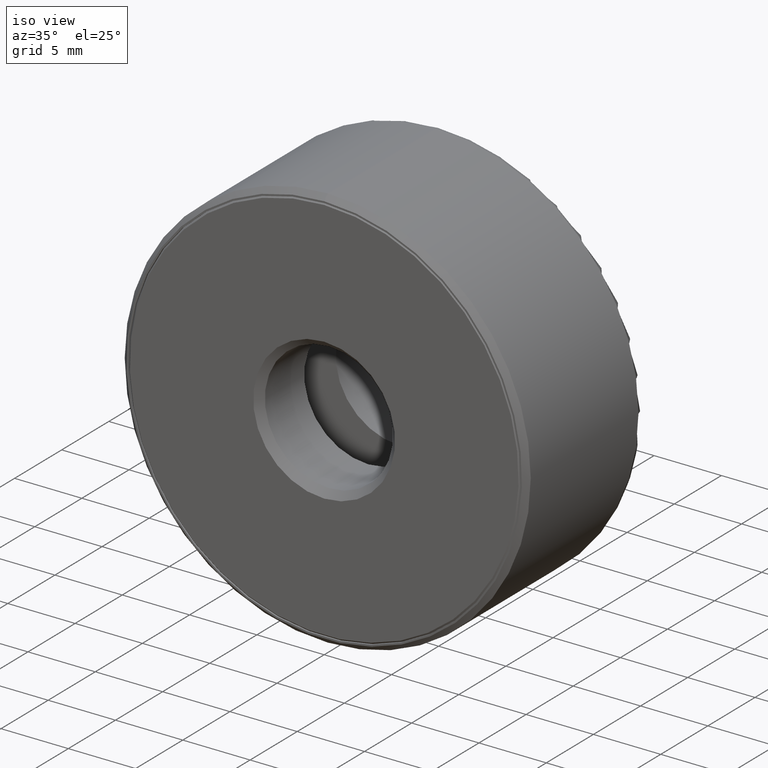
[diagram: clean part render]
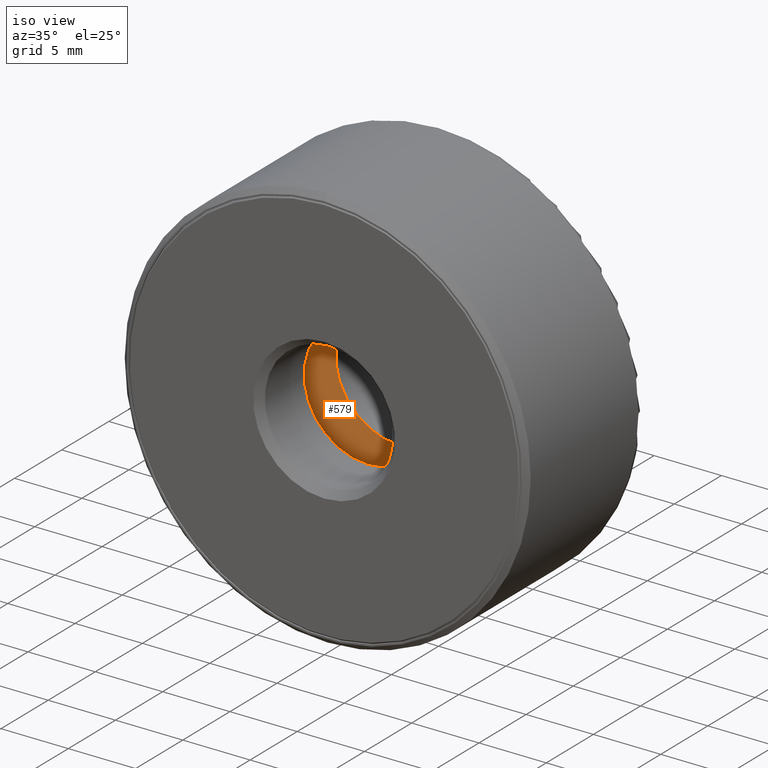
[diagram: same view with one face highlighted and labeled with its STEP entity id]
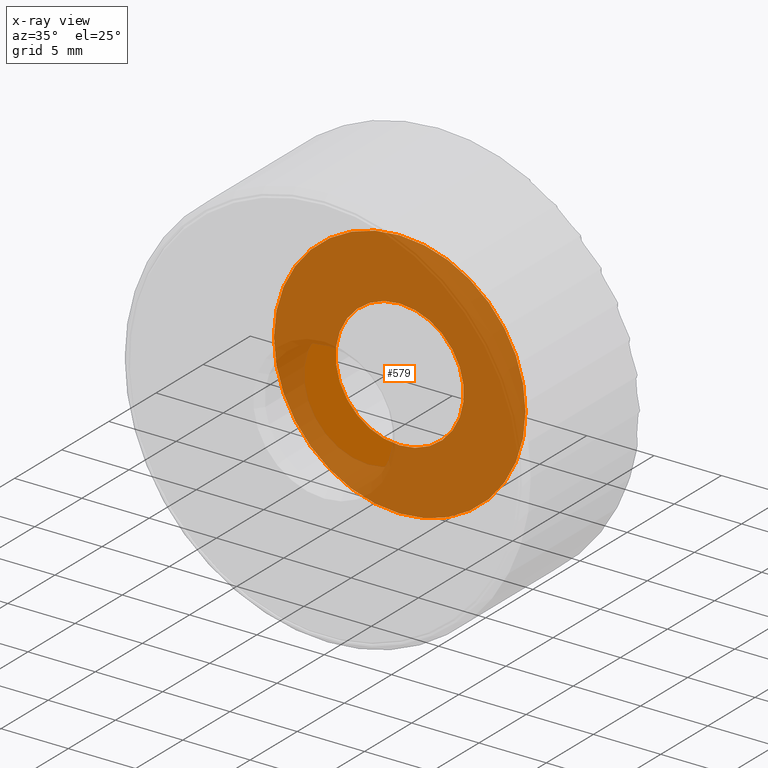
[diagram: x-ray of the same camera — body ghosted, the highlighted face saturated]
A machine part, iso view. The second image highlights one B-rep face of the part: STEP entity #579.
The next image is the same camera in x-ray: the body ghosted, the highlighted face saturated — about 88% of this face is hidden behind the body in this view.
In plain terms, the highlighted planar face has unit normal (0, -1, 0).
Its self-contained STEP definition (entity closure, byte-faithful):
#5 = DIRECTION ( 'NONE',  ( 0.0000000000000000000, -1.000000000000000000, 0.0000000000000000000 ) ) ;
#95 = EDGE_LOOP ( 'NONE', ( #593 ) ) ;
#127 = CARTESIAN_POINT ( 'NONE',  ( 0.0000000000000000000, 0.3156249999999998800, 0.0000000000000000000 ) ) ;
#159 = ORIENTED_EDGE ( 'NONE', *, *, #262, .F. ) ;
#183 = DIRECTION ( 'NONE',  ( -0.0000000000000000000, 1.000000000000000000, -0.0000000000000000000 ) ) ;
#197 = DIRECTION ( 'NONE',  ( 0.0000000000000000000, -0.0000000000000000000, -1.000000000000000000 ) ) ;
#210 = VERTEX_POINT ( 'NONE', #285 ) ;
#224 = FACE_OUTER_BOUND ( 'NONE', #557, .T. ) ;
#232 = DIRECTION ( 'NONE',  ( -0.0000000000000000000, 1.000000000000000000, -0.0000000000000000000 ) ) ;
#252 = EDGE_CURVE ( 'NONE', #408, #408, #388, .T. ) ;
#262 = EDGE_CURVE ( 'NONE', #210, #210, #432, .T. ) ;
#285 = CARTESIAN_POINT ( 'NONE',  ( 0.0000000000000000000, 0.3156249999999998800, 0.3678749999999998400 ) ) ;
#332 = AXIS2_PLACEMENT_3D ( 'NONE', #127, #183, #449 ) ;
#334 = CARTESIAN_POINT ( 'NONE',  ( 0.0000000000000000000, 0.3156249999999998800, 0.1875000000000000800 ) ) ;
#337 = PLANE ( 'NONE',  #571 ) ;
#378 = CARTESIAN_POINT ( 'NONE',  ( 0.0000000000000000000, 0.3156249999999998800, 0.0000000000000000000 ) ) ;
#388 = CIRCLE ( 'NONE', #332, 0.1875000000000000800 ) ;
#408 = VERTEX_POINT ( 'NONE', #334 ) ;
#423 = AXIS2_PLACEMENT_3D ( 'NONE', #493, #232, #587 ) ;
#432 = CIRCLE ( 'NONE', #423, 0.3678749999999998400 ) ;
#449 = DIRECTION ( 'NONE',  ( 0.0000000000000000000, 0.0000000000000000000, 1.000000000000000000 ) ) ;
#493 = CARTESIAN_POINT ( 'NONE',  ( 0.0000000000000000000, 0.3156249999999998800, 0.0000000000000000000 ) ) ;
#557 = EDGE_LOOP ( 'NONE', ( #159 ) ) ;
#567 = FACE_BOUND ( 'NONE', #95, .T. ) ;
#571 = AXIS2_PLACEMENT_3D ( 'NONE', #378, #5, #197 ) ;
#579 = ADVANCED_FACE ( 'NONE', ( #567, #224 ), #337, .T. ) ;
#587 = DIRECTION ( 'NONE',  ( 0.0000000000000000000, 0.0000000000000000000, 1.000000000000000000 ) ) ;
#593 = ORIENTED_EDGE ( 'NONE', *, *, #252, .T. ) ;